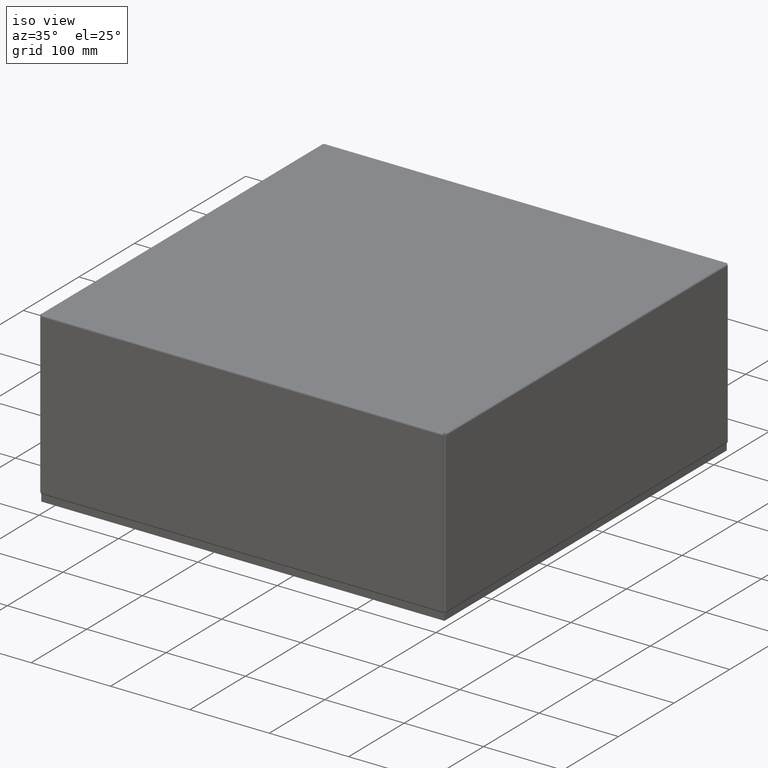
[diagram: clean part render]
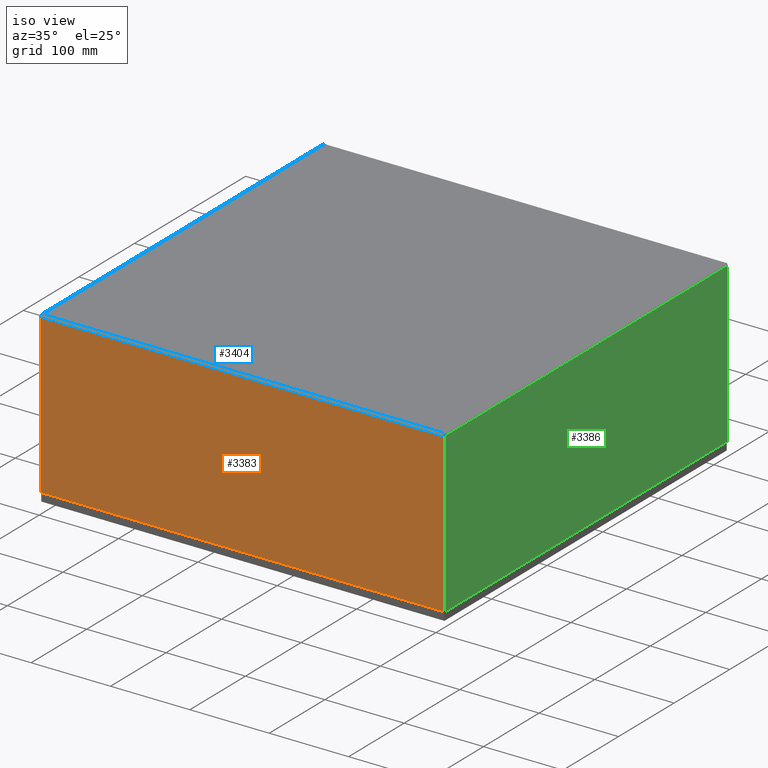
[diagram: same view with three faces highlighted in distinct colors, each labeled with its STEP entity id]
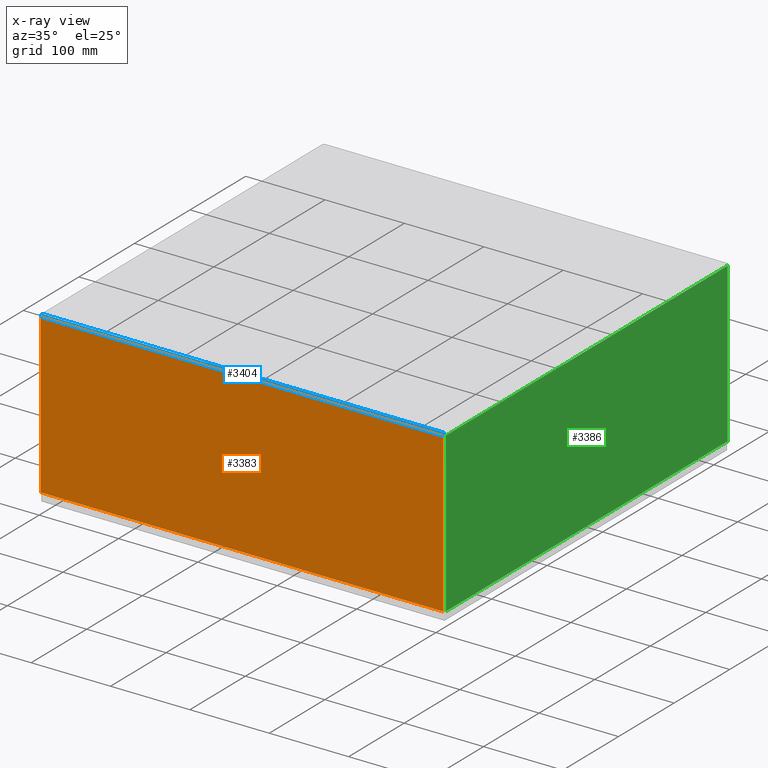
[diagram: x-ray of the same camera — body ghosted, the three highlighted faces saturated]
A machine part, iso view with three faces highlighted in distinct colors.
The next image is the same camera in x-ray (body ghosted, the three faces saturated) — at least one of them is partly hidden behind the body in this view.
Their STEP definitions:

[orange] entity #3383 — the highlighted planar face has unit normal (-0, -1, 0).
#383=PLANE($,#3622);
#528=LINE($,#5219,#740);
#573=LINE($,#5429,#785);
#574=LINE($,#5431,#786);
#575=LINE($,#5432,#787);
#740=VECTOR($,#4092,19.9628578643763);
#785=VECTOR($,#4185,7.8808);
#786=VECTOR($,#4186,19.9628578643763);
#787=VECTOR($,#4187,7.8808);
#1101=FACE_OUTER_BOUND($,#1333,.T.);
#1333=EDGE_LOOP($,(#2571,#2572,#2573,#2574));
#1723=VERTEX_POINT($,#5207);
#1724=VERTEX_POINT($,#5218);
#1753=VERTEX_POINT($,#5428);
#1754=VERTEX_POINT($,#5430);
#2011=EDGE_CURVE($,#1724,#1723,#528,.T.);
#2063=EDGE_CURVE($,#1753,#1723,#573,.T.);
#2064=EDGE_CURVE($,#1753,#1754,#574,.T.);
#2065=EDGE_CURVE($,#1724,#1754,#575,.T.);
#2571=ORIENTED_EDGE($,*,*,#2011,.T.);
#2572=ORIENTED_EDGE($,*,*,#2063,.F.);
#2573=ORIENTED_EDGE($,*,*,#2064,.T.);
#2574=ORIENTED_EDGE($,*,*,#2065,.F.);
#3383=ADVANCED_FACE($,(#1101),#383,.T.);
#3622=AXIS2_PLACEMENT_3D($,#5427,#4183,#4184);
#4092=DIRECTION($,(1.,-1.05827111908911E-019,0.));
#4183=DIRECTION('center_axis',(-1.05827111908911E-019,-1.,6.22164665707837E-017));
#4184=DIRECTION('ref_axis',(1.,-1.0582711190892E-019,0.));
#4185=DIRECTION($,(0.,-6.12323399573676E-017,-1.));
#4186=DIRECTION($,(-1.,1.05827111908911E-019,-6.48004169311283E-036));
#4187=DIRECTION($,(0.,6.12323399573676E-017,1.));
#5207=CARTESIAN_POINT('',(20.0439289321881,-4.69877854910253E-016,-7.8964));
#5218=CARTESIAN_POINT('',(0.0810710678118637,-4.69877854910253E-016,-7.8964));
#5219=CARTESIAN_POINT($,(5.07178553390593,-4.86268942872239E-016,-7.8964));
#5427=CARTESIAN_POINT('Origin',(10.0625,-2.40402623442455E-016,-3.96413240765383));
#5428=CARTESIAN_POINT('',(20.0439289321881,0.,-0.0155999999999996));
#5429=CARTESIAN_POINT($,(20.0439289321881,0.,-0.0155999999999995));
#5430=CARTESIAN_POINT('',(0.0810710678118652,0.,-0.0155999999999995));
#5431=CARTESIAN_POINT($,(10.0625,0.,-0.0156000000000003));
#5432=CARTESIAN_POINT($,(0.0810710678118637,0.,-0.0155999999999995));

[blue] entity #3404 — the highlighted cylindrical surface (edge-blend (fillet) strip) has radius 2.2758 mm, axis along (1, 0, 0).
#471=B_SPLINE_CURVE_WITH_KNOTS($,3,(#5690,#5691,#5692,#5693,#5694,#5695,
#5696),.UNSPECIFIED.,.F.,.F.,(4,3,4),(0.,0.89759790102565,1.57079632679489),
 .UNSPECIFIED.);
#472=B_SPLINE_CURVE_WITH_KNOTS($,3,(#5698,#5699,#5700,#5701,#5702,#5703,
#5704),.UNSPECIFIED.,.F.,.F.,(4,3,4),(0.,0.673198425769237,1.57079632679489),
 .UNSPECIFIED.);
#574=LINE($,#5431,#786);
#600=LINE($,#5697,#812);
#786=VECTOR($,#4186,19.9628578643763);
#812=VECTOR($,#4242,19.9458);
#1122=FACE_OUTER_BOUND($,#1354,.T.);
#1354=EDGE_LOOP($,(#2655,#2656,#2657,#2658));
#1753=VERTEX_POINT($,#5428);
#1754=VERTEX_POINT($,#5430);
#1762=VERTEX_POINT($,#5464);
#1767=VERTEX_POINT($,#5613);
#2064=EDGE_CURVE($,#1753,#1754,#574,.T.);
#2102=EDGE_CURVE($,#1762,#1753,#471,.T.);
#2103=EDGE_CURVE($,#1767,#1762,#600,.T.);
#2104=EDGE_CURVE($,#1754,#1767,#472,.T.);
#2655=ORIENTED_EDGE($,*,*,#2064,.F.);
#2656=ORIENTED_EDGE($,*,*,#2102,.F.);
#2657=ORIENTED_EDGE($,*,*,#2103,.F.);
#2658=ORIENTED_EDGE($,*,*,#2104,.F.);
#3173=CYLINDRICAL_SURFACE($,#3637,0.0896);
#3404=ADVANCED_FACE($,(#1122),#3173,.T.);
#3637=AXIS2_PLACEMENT_3D($,#5689,#4240,#4241);
#4186=DIRECTION($,(-1.,1.05827111908911E-019,-6.48004169311283E-036));
#4240=DIRECTION('center_axis',(1.,0.,0.));
#4241=DIRECTION('ref_axis',(0.,-1.,8.93338685428157E-015));
#4242=DIRECTION($,(1.,0.,0.));
#5428=CARTESIAN_POINT('',(20.0439289321881,0.,-0.0155999999999996));
#5430=CARTESIAN_POINT('',(0.0810710678118652,0.,-0.0155999999999995));
#5431=CARTESIAN_POINT($,(10.0625,0.,-0.0156000000000003));
#5464=CARTESIAN_POINT('',(20.0354,0.0896,0.074));
#5613=CARTESIAN_POINT('',(0.0896000000000001,0.0896,0.074));
#5689=CARTESIAN_POINT('Origin',(20.0439289321881,0.0896,-0.0156));
#5690=CARTESIAN_POINT('Ctrl Pts',(20.0354,0.0896,0.074));
#5691=CARTESIAN_POINT('Ctrl Pts',(20.037024558512,0.0627917426893673,0.074));
#5692=CARTESIAN_POINT('Ctrl Pts',(20.038649117024,0.0362837979100069,0.0611307784455943));
#5693=CARTESIAN_POINT('Ctrl Pts',(20.0402736755361,0.0195672209799182,0.0402773833151545));
#5694=CARTESIAN_POINT('Ctrl Pts',(20.0414920944201,0.00702978828235157,
0.0246373369673247));
#5695=CARTESIAN_POINT('Ctrl Pts',(20.0427105133041,2.53707586238935E-016,
0.00450619298297569));
#5696=CARTESIAN_POINT('Ctrl Pts',(20.0439289321881,-1.09273919746571E-017,
-0.0155999999999988));
#5697=CARTESIAN_POINT($,(5.07605,0.0896000000000001,0.074));
#5698=CARTESIAN_POINT('Ctrl Pts',(0.0810710678118651,1.09273919746571E-017,
-0.0155999999999991));
#5699=CARTESIAN_POINT('Ctrl Pts',(0.0822894866958844,2.02156751531155E-016,
0.00450619298297542));
#5700=CARTESIAN_POINT('Ctrl Pts',(0.0835079055799037,0.0070233617221815,
0.0246426930635986));
#5701=CARTESIAN_POINT('Ctrl Pts',(0.0847263244639229,0.0195598763397238,
0.040283504568039));
#5702=CARTESIAN_POINT('Ctrl Pts',(0.0863508829759487,0.0362752291631135,
0.061137919907293));
#5703=CARTESIAN_POINT('Ctrl Pts',(0.0879754414879744,0.0627917426893672,
0.074));
#5704=CARTESIAN_POINT('Ctrl Pts',(0.0896000000000001,0.0896,0.074));

[green] entity #3386 — the highlighted planar face has unit normal (1, 0, 0).
#386=PLANE($,#3625);
#512=LINE($,#5121,#724);
#580=LINE($,#5443,#792);
#581=LINE($,#5445,#793);
#582=LINE($,#5446,#794);
#724=VECTOR($,#4058,19.9628578643763);
#792=VECTOR($,#4198,7.8808);
#793=VECTOR($,#4199,19.9628578643763);
#794=VECTOR($,#4200,7.8808);
#1104=FACE_OUTER_BOUND($,#1336,.T.);
#1336=EDGE_LOOP($,(#2583,#2584,#2585,#2586));
#1711=VERTEX_POINT($,#5109);
#1712=VERTEX_POINT($,#5120);
#1757=VERTEX_POINT($,#5442);
#1758=VERTEX_POINT($,#5444);
#1991=EDGE_CURVE($,#1712,#1711,#512,.T.);
#2070=EDGE_CURVE($,#1757,#1711,#580,.T.);
#2071=EDGE_CURVE($,#1757,#1758,#581,.T.);
#2072=EDGE_CURVE($,#1712,#1758,#582,.T.);
#2583=ORIENTED_EDGE($,*,*,#1991,.T.);
#2584=ORIENTED_EDGE($,*,*,#2070,.F.);
#2585=ORIENTED_EDGE($,*,*,#2071,.T.);
#2586=ORIENTED_EDGE($,*,*,#2072,.F.);
#3386=ADVANCED_FACE($,(#1104),#386,.T.);
#3625=AXIS2_PLACEMENT_3D($,#5441,#4196,#4197);
#4058=DIRECTION($,(-2.12887550049545E-016,1.,0.));
#4196=DIRECTION('center_axis',(1.,2.12887550049545E-016,5.15418372095418E-015));
#4197=DIRECTION('ref_axis',(9.02389274415327E-015,0.,-1.));
#4198=DIRECTION($,(5.39030285815812E-015,1.4791141972894E-030,-1.));
#4199=DIRECTION($,(2.12887550049545E-016,-1.,-3.50995830398427E-031));
#4200=DIRECTION($,(-5.39030285815812E-015,-1.4791141972894E-030,1.));
#5109=CARTESIAN_POINT('',(20.125,20.0439289321881,-7.8964));
#5120=CARTESIAN_POINT('',(20.125,0.0810710678118638,-7.8964));
#5121=CARTESIAN_POINT($,(20.125,5.07178553390593,-7.8964));
#5441=CARTESIAN_POINT('Origin',(20.125,10.0625,-3.96413240765383));
#5442=CARTESIAN_POINT('',(20.125,20.0439289321881,-0.0155999999999986));
#5443=CARTESIAN_POINT($,(20.125,20.0439289321881,-0.0155999999999986));
#5444=CARTESIAN_POINT('',(20.125,0.0810710678118666,-0.0155999999999986));
#5445=CARTESIAN_POINT($,(20.125,10.0625,-0.0155999999999986));
#5446=CARTESIAN_POINT($,(20.125,0.0810710678118638,-0.0155999999999986));